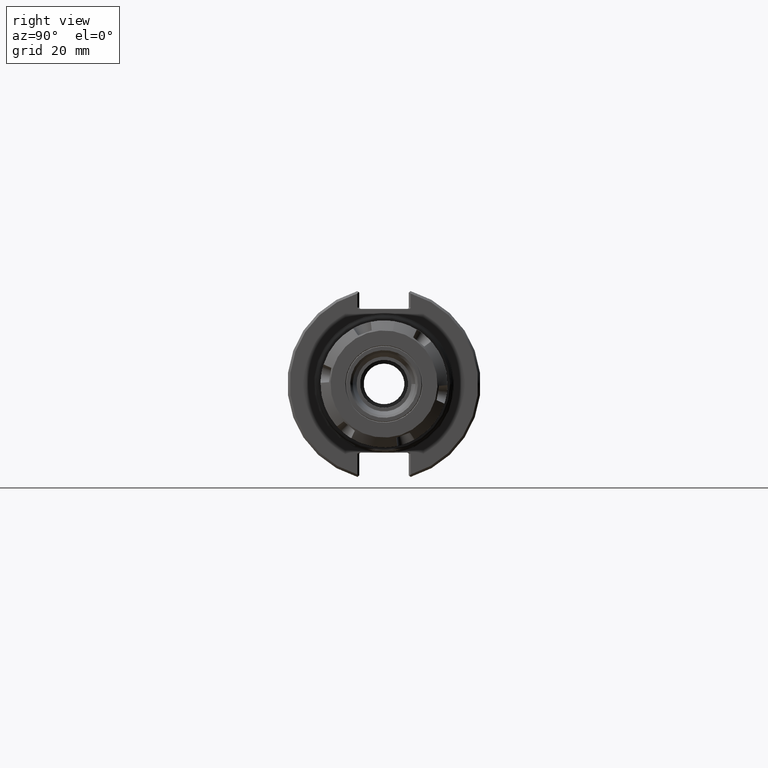
[diagram: clean part render]
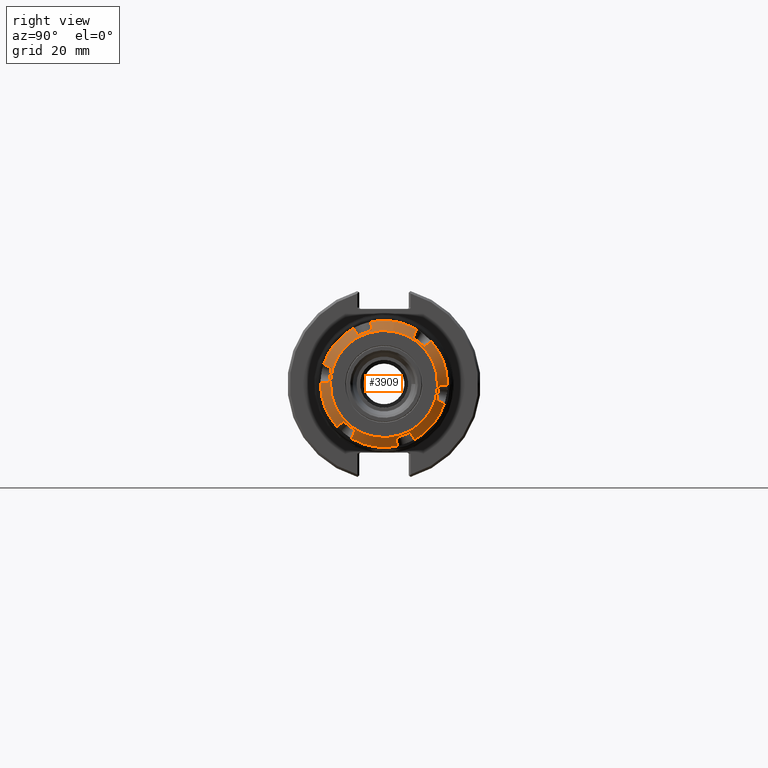
[diagram: same view with one face highlighted and labeled with its STEP entity id]
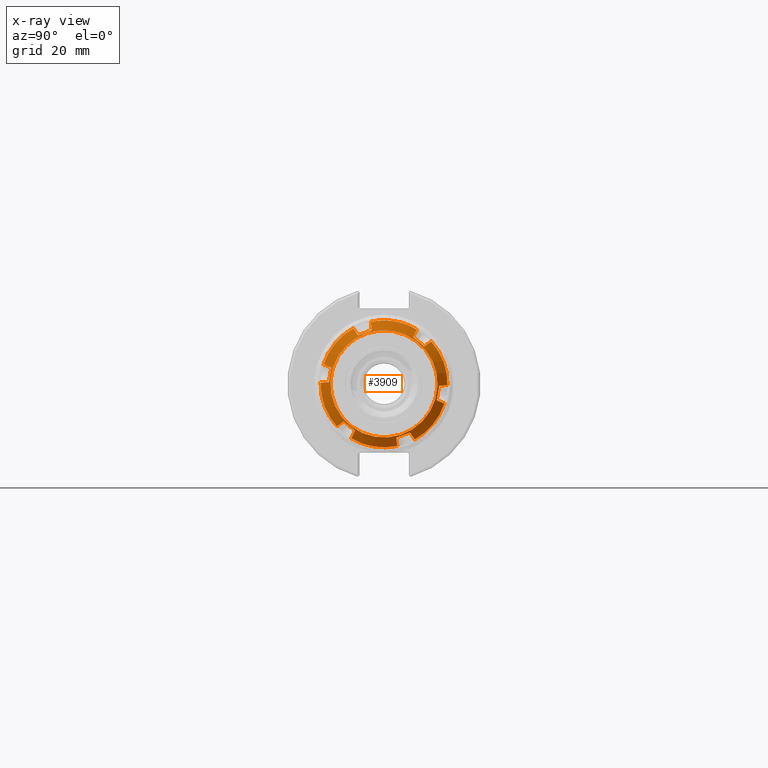
[diagram: x-ray of the same camera — body ghosted, the highlighted face saturated]
A machine part, right view. The second image highlights one B-rep face of the part: STEP entity #3909.
The next image is the same camera in x-ray: the body ghosted, the highlighted face saturated — about 0% of this face is hidden behind the body in this view.
In plain terms, the highlighted conical surface has half-angle 55 deg.
Its self-contained STEP definition (entity closure, byte-faithful):
#2857=CARTESIAN_POINT('',(0.013488532245051,0.658413935071814,-0.271593612044263));
#2858=VERTEX_POINT('',#2857);
#2859=CARTESIAN_POINT('',(0.013488532245051,0.564413935071814,-0.434406387955737));
#2860=VERTEX_POINT('',#2859);
#2861=CARTESIAN_POINT('',(0.013488532245051,0.658413935071814,-0.271593612044263));
#2862=CARTESIAN_POINT('',(0.004801687822576,0.611413935071814,-0.353));
#2863=CARTESIAN_POINT('',(0.013488532245051,0.564413935071814,-0.434406387955737));
#2871=(BOUNDED_CURVE()B_SPLINE_CURVE(2,(#2861,#2862,#2863),.UNSPECIFIED.,.F.,.U.)B_SPLINE_CURVE_WITH_KNOTS((3,3),(0.82459648433292,1.3483544344432),.UNSPECIFIED.)CURVE()GEOMETRIC_REPRESENTATION_ITEM()RATIONAL_B_SPLINE_CURVE((1.077046513658623,1.086551220052426,1.077046513658623))REPRESENTATION_ITEM(''));
#2872=EDGE_CURVE('',#2858,#2860,#2871,.T.);
#2905=CARTESIAN_POINT('',(0.09,0.643444973152068,-0.510725774291189));
#2906=VERTEX_POINT('',#2905);
#2907=CARTESIAN_POINT('',(0.013488532245051,0.564413935071814,-0.434406387955737));
#2908=CARTESIAN_POINT('',(0.048988927489935,0.601114194534895,-0.469847416551742));
#2909=CARTESIAN_POINT('',(0.09,0.643444973152068,-0.510725774291189));
#2917=(BOUNDED_CURVE()B_SPLINE_CURVE(2,(#2907,#2908,#2909),.UNSPECIFIED.,.F.,.U.)B_SPLINE_CURVE_WITH_KNOTS((3,3),(0.0,0.340061883942787),.UNSPECIFIED.)CURVE()GEOMETRIC_REPRESENTATION_ITEM()RATIONAL_B_SPLINE_CURVE((1.0,1.00257557690847,1.0))REPRESENTATION_ITEM(''));
#2918=EDGE_CURVE('',#2860,#2906,#2917,.T.);
#2982=CARTESIAN_POINT('',(0.09,0.764023981479681,-0.301876805541493));
#2983=VERTEX_POINT('',#2982);
#2984=CARTESIAN_POINT('',(0.09,0.764023981479681,-0.301876805541493));
#2985=CARTESIAN_POINT('',(0.048988927498252,0.707456895915225,-0.285656454770061));
#2986=CARTESIAN_POINT('',(0.013488532245051,0.658413935071814,-0.271593612044263));
#2994=(BOUNDED_CURVE()B_SPLINE_CURVE(2,(#2984,#2985,#2986),.UNSPECIFIED.,.F.,.U.)B_SPLINE_CURVE_WITH_KNOTS((3,3),(0.0,0.340061883942787),.UNSPECIFIED.)CURVE()GEOMETRIC_REPRESENTATION_ITEM()RATIONAL_B_SPLINE_CURVE((1.0,1.002575576871101,1.0))REPRESENTATION_ITEM(''));
#2995=EDGE_CURVE('',#2983,#2858,#2994,.T.);
#3013=CARTESIAN_POINT('',(0.013488532245051,0.094,-0.706));
#3014=VERTEX_POINT('',#3013);
#3015=CARTESIAN_POINT('',(0.013488532245051,-0.094,-0.706));
#3016=VERTEX_POINT('',#3015);
#3017=CARTESIAN_POINT('',(0.013488532245051,0.094,-0.706));
#3018=CARTESIAN_POINT('',(0.004801687822576,1.857657E-016,-0.706));
#3019=CARTESIAN_POINT('',(0.013488532245051,-0.094,-0.706));
#3027=(BOUNDED_CURVE()B_SPLINE_CURVE(2,(#3017,#3018,#3019),.UNSPECIFIED.,.F.,.U.)B_SPLINE_CURVE_WITH_KNOTS((3,3),(0.82459648433292,1.348354434443201),.UNSPECIFIED.)CURVE()GEOMETRIC_REPRESENTATION_ITEM()RATIONAL_B_SPLINE_CURVE((1.077046513658622,1.086551220052426,1.077046513658622))REPRESENTATION_ITEM(''));
#3028=EDGE_CURVE('',#3014,#3016,#3027,.T.);
#3061=CARTESIAN_POINT('',(0.09,-0.120579008327613,-0.812602579832681));
#3062=VERTEX_POINT('',#3061);
#3063=CARTESIAN_POINT('',(0.013488532245051,-0.094,-0.706));
#3064=CARTESIAN_POINT('',(0.048988927495278,-0.106342701370706,-0.755503871325955));
#3065=CARTESIAN_POINT('',(0.09,-0.120579008327613,-0.812602579832681));
#3073=(BOUNDED_CURVE()B_SPLINE_CURVE(2,(#3063,#3064,#3065),.UNSPECIFIED.,.F.,.U.)B_SPLINE_CURVE_WITH_KNOTS((3,3),(0.0,0.340061883942787),.UNSPECIFIED.)CURVE()GEOMETRIC_REPRESENTATION_ITEM()RATIONAL_B_SPLINE_CURVE((1.0,1.002575576888377,1.0))REPRESENTATION_ITEM(''));
#3074=EDGE_CURVE('',#3016,#3062,#3073,.T.);
#3138=CARTESIAN_POINT('',(0.09,0.120579008327613,-0.812602579832682));
#3139=VERTEX_POINT('',#3138);
#3140=CARTESIAN_POINT('',(0.09,0.120579008327613,-0.812602579832681));
#3141=CARTESIAN_POINT('',(0.048988927497536,0.106342701371491,-0.755503871329102));
#3142=CARTESIAN_POINT('',(0.013488532245051,0.094,-0.706));
#3150=(BOUNDED_CURVE()B_SPLINE_CURVE(2,(#3140,#3141,#3142),.UNSPECIFIED.,.F.,.U.)B_SPLINE_CURVE_WITH_KNOTS((3,3),(0.0,0.340061883942787),.UNSPECIFIED.)CURVE()GEOMETRIC_REPRESENTATION_ITEM()RATIONAL_B_SPLINE_CURVE((1.0,1.002575576879469,1.0))REPRESENTATION_ITEM(''));
#3151=EDGE_CURVE('',#3139,#3014,#3150,.T.);
#3169=CARTESIAN_POINT('',(0.013488532245051,-0.564413935071814,-0.434406387955737));
#3170=VERTEX_POINT('',#3169);
#3171=CARTESIAN_POINT('',(0.013488532245051,-0.658413935071814,-0.271593612044263));
#3172=VERTEX_POINT('',#3171);
#3173=CARTESIAN_POINT('',(0.013488532245051,-0.564413935071814,-0.434406387955737));
#3174=CARTESIAN_POINT('',(0.004801687822576,-0.611413935071814,-0.353));
#3175=CARTESIAN_POINT('',(0.013488532245051,-0.658413935071814,-0.271593612044263));
#3183=(BOUNDED_CURVE()B_SPLINE_CURVE(2,(#3173,#3174,#3175),.UNSPECIFIED.,.F.,.U.)B_SPLINE_CURVE_WITH_KNOTS((3,3),(0.824596484332921,1.348354434443202),.UNSPECIFIED.)CURVE()GEOMETRIC_REPRESENTATION_ITEM()RATIONAL_B_SPLINE_CURVE((1.077046513658622,1.086551220052425,1.077046513658622))REPRESENTATION_ITEM(''));
#3184=EDGE_CURVE('',#3170,#3172,#3183,.T.);
#3217=CARTESIAN_POINT('',(0.09,-0.764023981479681,-0.301876805541492));
#3218=VERTEX_POINT('',#3217);
#3219=CARTESIAN_POINT('',(0.013488532245051,-0.658413935071814,-0.271593612044263));
#3220=CARTESIAN_POINT('',(0.048988927492729,-0.707456895907601,-0.285656454767875));
#3221=CARTESIAN_POINT('',(0.09,-0.764023981479681,-0.301876805541492));
#3229=(BOUNDED_CURVE()B_SPLINE_CURVE(2,(#3219,#3220,#3221),.UNSPECIFIED.,.F.,.U.)B_SPLINE_CURVE_WITH_KNOTS((3,3),(0.0,0.340061883942787),.UNSPECIFIED.)CURVE()GEOMETRIC_REPRESENTATION_ITEM()RATIONAL_B_SPLINE_CURVE((1.0,1.002575576897637,1.0))REPRESENTATION_ITEM(''));
#3230=EDGE_CURVE('',#3172,#3218,#3229,.T.);
#3294=CARTESIAN_POINT('',(0.09,-0.643444973152068,-0.510725774291189));
#3295=VERTEX_POINT('',#3294);
#3296=CARTESIAN_POINT('',(0.09,-0.643444973152068,-0.510725774291189));
#3297=CARTESIAN_POINT('',(0.048988927482105,-0.601114194526807,-0.469847416543931));
#3298=CARTESIAN_POINT('',(0.013488532245051,-0.564413935071814,-0.434406387955737));
#3306=(BOUNDED_CURVE()B_SPLINE_CURVE(2,(#3296,#3297,#3298),.UNSPECIFIED.,.F.,.U.)B_SPLINE_CURVE_WITH_KNOTS((3,3),(0.0,0.340061883942787),.UNSPECIFIED.)CURVE()GEOMETRIC_REPRESENTATION_ITEM()RATIONAL_B_SPLINE_CURVE((1.0,1.002575576943949,1.0))REPRESENTATION_ITEM(''));
#3307=EDGE_CURVE('',#3295,#3170,#3306,.T.);
#3325=CARTESIAN_POINT('',(0.013488532245051,-0.658413935071814,0.271593612044263));
#3326=VERTEX_POINT('',#3325);
#3327=CARTESIAN_POINT('',(0.013488532245051,-0.564413935071814,0.434406387955737));
#3328=VERTEX_POINT('',#3327);
#3329=CARTESIAN_POINT('',(0.013488532245051,-0.658413935071814,0.271593612044263));
#3330=CARTESIAN_POINT('',(0.004801687822576,-0.611413935071814,0.353));
#3331=CARTESIAN_POINT('',(0.013488532245051,-0.564413935071814,0.434406387955737));
#3339=(BOUNDED_CURVE()B_SPLINE_CURVE(2,(#3329,#3330,#3331),.UNSPECIFIED.,.F.,.U.)B_SPLINE_CURVE_WITH_KNOTS((3,3),(0.824596484332921,1.348354434443201),.UNSPECIFIED.)CURVE()GEOMETRIC_REPRESENTATION_ITEM()RATIONAL_B_SPLINE_CURVE((1.077046513658621,1.086551220052424,1.07704651365862))REPRESENTATION_ITEM(''));
#3340=EDGE_CURVE('',#3326,#3328,#3339,.T.);
#3373=CARTESIAN_POINT('',(0.09,-0.643444973152068,0.510725774291189));
#3374=VERTEX_POINT('',#3373);
#3375=CARTESIAN_POINT('',(0.013488532245051,-0.564413935071814,0.434406387955737));
#3376=CARTESIAN_POINT('',(0.048988927492239,-0.601114194537275,0.46984741655404));
#3377=CARTESIAN_POINT('',(0.09,-0.643444973152068,0.510725774291189));
#3385=(BOUNDED_CURVE()B_SPLINE_CURVE(2,(#3375,#3376,#3377),.UNSPECIFIED.,.F.,.U.)B_SPLINE_CURVE_WITH_KNOTS((3,3),(0.0,0.340061883942787),.UNSPECIFIED.)CURVE()GEOMETRIC_REPRESENTATION_ITEM()RATIONAL_B_SPLINE_CURVE((1.0,1.002575576900996,1.0))REPRESENTATION_ITEM(''));
#3386=EDGE_CURVE('',#3328,#3374,#3385,.T.);
#3450=CARTESIAN_POINT('',(0.09,-0.764023981479681,0.301876805541492));
#3451=VERTEX_POINT('',#3450);
#3452=CARTESIAN_POINT('',(0.09,-0.764023981479681,0.301876805541492));
#3453=CARTESIAN_POINT('',(0.04898892750456,-0.707456895923934,0.285656454772558));
#3454=CARTESIAN_POINT('',(0.013488532245051,-0.658413935071814,0.271593612044263));
#3462=(BOUNDED_CURVE()B_SPLINE_CURVE(2,(#3452,#3453,#3454),.UNSPECIFIED.,.F.,.U.)B_SPLINE_CURVE_WITH_KNOTS((3,3),(0.0,0.340061883942787),.UNSPECIFIED.)CURVE()GEOMETRIC_REPRESENTATION_ITEM()RATIONAL_B_SPLINE_CURVE((1.0,1.002575576858716,1.0))REPRESENTATION_ITEM(''));
#3463=EDGE_CURVE('',#3451,#3326,#3462,.T.);
#3481=CARTESIAN_POINT('',(0.013488532245051,0.564413935071814,0.434406387955737));
#3482=VERTEX_POINT('',#3481);
#3483=CARTESIAN_POINT('',(0.013488532245051,0.658413935071814,0.271593612044262));
#3484=VERTEX_POINT('',#3483);
#3485=CARTESIAN_POINT('',(0.013488532245051,0.564413935071814,0.434406387955737));
#3486=CARTESIAN_POINT('',(0.004801687822576,0.611413935071814,0.353));
#3487=CARTESIAN_POINT('',(0.013488532245051,0.658413935071814,0.271593612044262));
#3495=(BOUNDED_CURVE()B_SPLINE_CURVE(2,(#3485,#3486,#3487),.UNSPECIFIED.,.F.,.U.)B_SPLINE_CURVE_WITH_KNOTS((3,3),(0.82459648433292,1.3483544344432),.UNSPECIFIED.)CURVE()GEOMETRIC_REPRESENTATION_ITEM()RATIONAL_B_SPLINE_CURVE((1.077046513658621,1.086551220052425,1.077046513658621))REPRESENTATION_ITEM(''));
#3496=EDGE_CURVE('',#3482,#3484,#3495,.T.);
#3529=CARTESIAN_POINT('',(0.09,0.764023981479681,0.301876805541492));
#3530=VERTEX_POINT('',#3529);
#3531=CARTESIAN_POINT('',(0.013488532245051,0.658413935071814,0.271593612044262));
#3532=CARTESIAN_POINT('',(0.048988927503607,0.707456895922618,0.28565645477218));
#3533=CARTESIAN_POINT('',(0.09,0.764023981479681,0.301876805541492));
#3541=(BOUNDED_CURVE()B_SPLINE_CURVE(2,(#3531,#3532,#3533),.UNSPECIFIED.,.F.,.U.)B_SPLINE_CURVE_WITH_KNOTS((3,3),(0.0,0.340061883942786),.UNSPECIFIED.)CURVE()GEOMETRIC_REPRESENTATION_ITEM()RATIONAL_B_SPLINE_CURVE((1.0,1.002575576856022,1.0))REPRESENTATION_ITEM(''));
#3542=EDGE_CURVE('',#3484,#3530,#3541,.T.);
#3606=CARTESIAN_POINT('',(0.09,0.643444973152068,0.510725774291189));
#3607=VERTEX_POINT('',#3606);
#3608=CARTESIAN_POINT('',(0.09,0.643444973152068,0.510725774291189));
#3609=CARTESIAN_POINT('',(0.048988927489963,0.601114194534924,0.469847416551769));
#3610=CARTESIAN_POINT('',(0.013488532245051,0.564413935071814,0.434406387955737));
#3618=(BOUNDED_CURVE()B_SPLINE_CURVE(2,(#3608,#3609,#3610),.UNSPECIFIED.,.F.,.U.)B_SPLINE_CURVE_WITH_KNOTS((3,3),(0.0,0.340061883942787),.UNSPECIFIED.)CURVE()GEOMETRIC_REPRESENTATION_ITEM()RATIONAL_B_SPLINE_CURVE((1.0,1.002575576920623,1.0))REPRESENTATION_ITEM(''));
#3619=EDGE_CURVE('',#3607,#3482,#3618,.T.);
#3651=CARTESIAN_POINT('',(0.09,0.0,0.0));
#3652=DIRECTION('',(1.0,0.0,0.0));
#3653=DIRECTION('',(0.0,1.0,0.0));
#3654=AXIS2_PLACEMENT_3D('',#3651,#3652,#3653);
#3655=CIRCLE('',#3654,0.8215);
#3656=EDGE_CURVE('',#2983,#3530,#3655,.T.);
#3661=CARTESIAN_POINT('',(0.09,0.120579008327613,0.812602579832681));
#3662=VERTEX_POINT('',#3661);
#3663=CARTESIAN_POINT('',(0.09,0.0,0.0));
#3664=DIRECTION('',(1.0,0.0,0.0));
#3665=DIRECTION('',(0.0,1.0,0.0));
#3666=AXIS2_PLACEMENT_3D('',#3663,#3664,#3665);
#3667=CIRCLE('',#3666,0.8215);
#3668=EDGE_CURVE('',#3607,#3662,#3667,.T.);
#3701=CARTESIAN_POINT('',(0.09,-0.120579008327613,0.812602579832682));
#3702=VERTEX_POINT('',#3701);
#3709=CARTESIAN_POINT('',(0.09,0.0,0.0));
#3710=DIRECTION('',(1.0,0.0,0.0));
#3711=DIRECTION('',(0.0,1.0,0.0));
#3712=AXIS2_PLACEMENT_3D('',#3709,#3710,#3711);
#3713=CIRCLE('',#3712,0.8215);
#3714=EDGE_CURVE('',#3702,#3374,#3713,.T.);
#3719=CARTESIAN_POINT('',(0.09,0.0,0.0));
#3720=DIRECTION('',(1.0,0.0,0.0));
#3721=DIRECTION('',(0.0,1.0,0.0));
#3722=AXIS2_PLACEMENT_3D('',#3719,#3720,#3721);
#3723=CIRCLE('',#3722,0.8215);
#3724=EDGE_CURVE('',#3451,#3218,#3723,.T.);
#3729=CARTESIAN_POINT('',(0.09,0.0,0.0));
#3730=DIRECTION('',(1.0,0.0,0.0));
#3731=DIRECTION('',(0.0,1.0,0.0));
#3732=AXIS2_PLACEMENT_3D('',#3729,#3730,#3731);
#3733=CIRCLE('',#3732,0.8215);
#3734=EDGE_CURVE('',#3295,#3062,#3733,.T.);
#3739=CARTESIAN_POINT('',(0.09,0.0,0.0));
#3740=DIRECTION('',(1.0,0.0,0.0));
#3741=DIRECTION('',(0.0,1.0,0.0));
#3742=AXIS2_PLACEMENT_3D('',#3739,#3740,#3741);
#3743=CIRCLE('',#3742,0.8215);
#3744=EDGE_CURVE('',#3139,#2906,#3743,.T.);
#3754=CARTESIAN_POINT('',(0.013488532245051,-0.094,0.706));
#3755=VERTEX_POINT('',#3754);
#3756=CARTESIAN_POINT('',(0.013488532245051,0.094,0.706));
#3757=VERTEX_POINT('',#3756);
#3758=CARTESIAN_POINT('',(0.013488532245051,-0.094,0.706));
#3759=CARTESIAN_POINT('',(0.004801687822575,-1.966931E-016,0.706));
#3760=CARTESIAN_POINT('',(0.013488532245051,0.094,0.706));
#3768=(BOUNDED_CURVE()B_SPLINE_CURVE(2,(#3758,#3759,#3760),.UNSPECIFIED.,.F.,.U.)B_SPLINE_CURVE_WITH_KNOTS((3,3),(0.824596484332919,1.348354434443201),.UNSPECIFIED.)CURVE()GEOMETRIC_REPRESENTATION_ITEM()RATIONAL_B_SPLINE_CURVE((1.077046513658623,1.086551220052426,1.077046513658622))REPRESENTATION_ITEM(''));
#3769=EDGE_CURVE('',#3755,#3757,#3768,.T.);
#3802=CARTESIAN_POINT('',(0.013488532245051,0.094,0.706));
#3803=CARTESIAN_POINT('',(0.048988927481718,0.106342701365995,0.755503871307058));
#3804=CARTESIAN_POINT('',(0.09,0.120579008327613,0.812602579832681));
#3812=(BOUNDED_CURVE()B_SPLINE_CURVE(2,(#3802,#3803,#3804),.UNSPECIFIED.,.F.,.U.)B_SPLINE_CURVE_WITH_KNOTS((3,3),(0.064477313908799,0.4000538741211),.UNSPECIFIED.)CURVE()GEOMETRIC_REPRESENTATION_ITEM()RATIONAL_B_SPLINE_CURVE((1.000990179898273,1.003071819221106,1.0))REPRESENTATION_ITEM(''));
#3813=EDGE_CURVE('',#3757,#3662,#3812,.T.);
#3848=CARTESIAN_POINT('',(0.09,-0.120579008327613,0.812602579832681));
#3849=CARTESIAN_POINT('',(0.048988927493886,-0.106342701370223,0.755503871324019));
#3850=CARTESIAN_POINT('',(0.013488532245051,-0.094,0.706));
#3858=(BOUNDED_CURVE()B_SPLINE_CURVE(2,(#3848,#3849,#3850),.UNSPECIFIED.,.F.,.U.)B_SPLINE_CURVE_WITH_KNOTS((3,3),(0.0,0.335576560231471),.UNSPECIFIED.)CURVE()GEOMETRIC_REPRESENTATION_ITEM()RATIONAL_B_SPLINE_CURVE((1.0,1.00307181916717,1.000990179880592))REPRESENTATION_ITEM(''));
#3859=EDGE_CURVE('',#3702,#3755,#3858,.T.);
#3867=CARTESIAN_POINT('',(0.045,0.0,0.0));
#3868=DIRECTION('',(1.0,0.0,0.0));
#3869=DIRECTION('',(0.0,1.0,0.0));
#3870=AXIS2_PLACEMENT_3D('',#3867,#3868,#3869);
#3871=CONICAL_SURFACE('',#3870,0.757233339696605,55.000000000000014);
#3872=ORIENTED_EDGE('',*,*,#2918,.T.);
#3873=ORIENTED_EDGE('',*,*,#3744,.F.);
#3874=ORIENTED_EDGE('',*,*,#3151,.T.);
#3875=ORIENTED_EDGE('',*,*,#3028,.T.);
#3876=ORIENTED_EDGE('',*,*,#3074,.T.);
#3877=ORIENTED_EDGE('',*,*,#3734,.F.);
#3878=ORIENTED_EDGE('',*,*,#3307,.T.);
#3879=ORIENTED_EDGE('',*,*,#3184,.T.);
#3880=ORIENTED_EDGE('',*,*,#3230,.T.);
#3881=ORIENTED_EDGE('',*,*,#3724,.F.);
#3882=ORIENTED_EDGE('',*,*,#3463,.T.);
#3883=ORIENTED_EDGE('',*,*,#3340,.T.);
#3884=ORIENTED_EDGE('',*,*,#3386,.T.);
#3885=ORIENTED_EDGE('',*,*,#3714,.F.);
#3886=ORIENTED_EDGE('',*,*,#3859,.T.);
#3887=ORIENTED_EDGE('',*,*,#3769,.T.);
#3888=ORIENTED_EDGE('',*,*,#3813,.T.);
#3889=ORIENTED_EDGE('',*,*,#3668,.F.);
#3890=ORIENTED_EDGE('',*,*,#3619,.T.);
#3891=ORIENTED_EDGE('',*,*,#3496,.T.);
#3892=ORIENTED_EDGE('',*,*,#3542,.T.);
#3893=ORIENTED_EDGE('',*,*,#3656,.F.);
#3894=ORIENTED_EDGE('',*,*,#2995,.T.);
#3895=ORIENTED_EDGE('',*,*,#2872,.T.);
#3896=EDGE_LOOP('',(#3872,#3873,#3874,#3875,#3876,#3877,#3878,#3879,#3880,#3881,#3882,#3883,#3884,#3885,#3886,#3887,#3888,#3889,#3890,#3891,#3892,#3893,#3894,#3895));
#3897=FACE_OUTER_BOUND('',#3896,.T.);
#3898=CARTESIAN_POINT('',(-2.120597E-016,0.69296667939321,0.0));
#3899=VERTEX_POINT('',#3898);
#3900=CARTESIAN_POINT('',(-1.748383E-016,0.0,0.0));
#3901=DIRECTION('',(1.0,0.0,0.0));
#3902=DIRECTION('',(0.0,1.0,0.0));
#3903=AXIS2_PLACEMENT_3D('',#3900,#3901,#3902);
#3904=CIRCLE('',#3903,0.69296667939321);
#3905=EDGE_CURVE('',#3899,#3899,#3904,.T.);
#3906=ORIENTED_EDGE('',*,*,#3905,.T.);
#3907=EDGE_LOOP('',(#3906));
#3908=FACE_BOUND('',#3907,.T.);
#3909=ADVANCED_FACE('',(#3897,#3908),#3871,.T.);